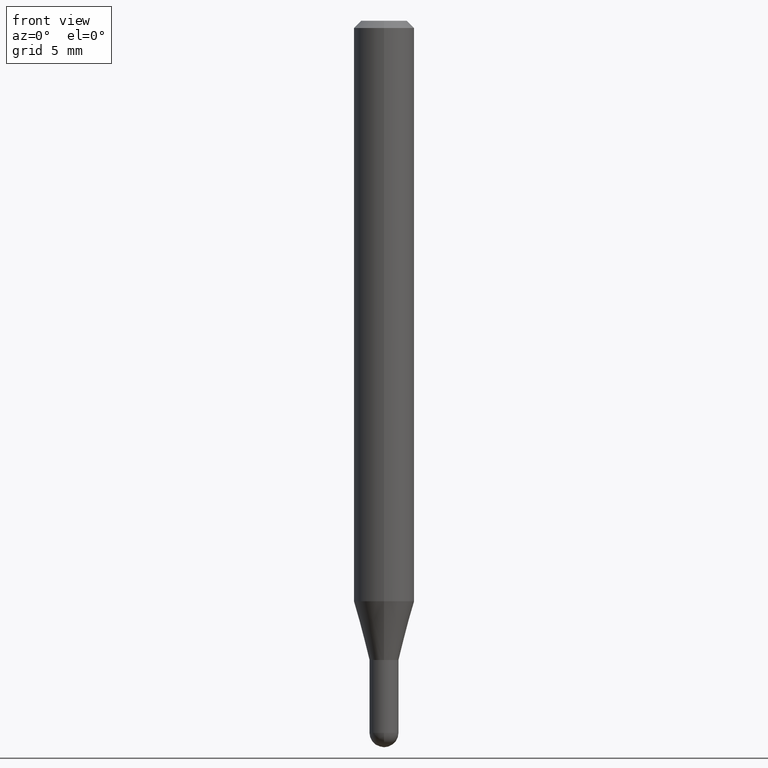
[diagram: clean part render]
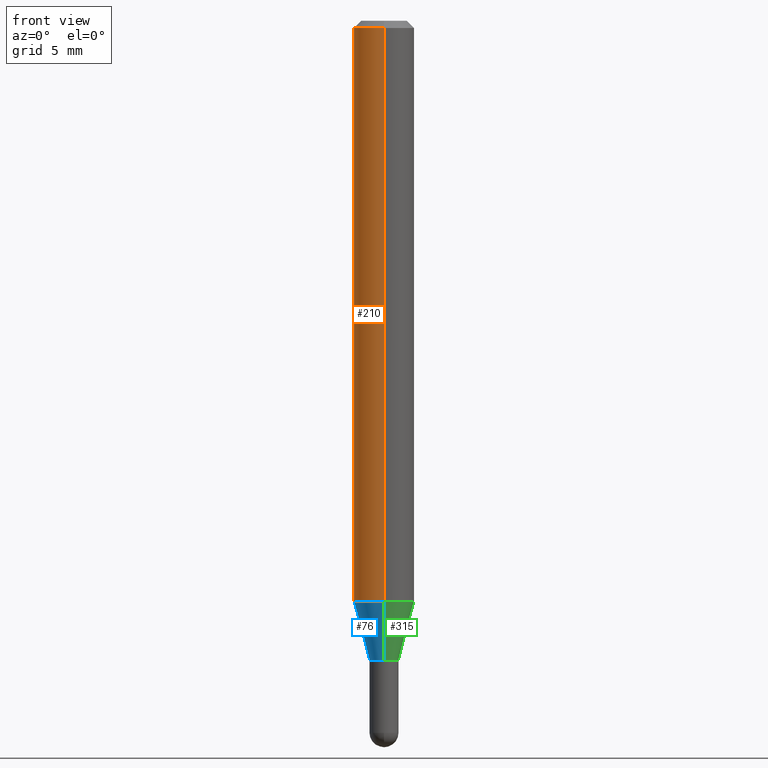
[diagram: same view with three faces highlighted in distinct colors, each labeled with its STEP entity id]
A machine part, front view with three faces highlighted in distinct colors.
Their STEP definitions:

[orange] entity #210 — the highlighted cylindrical surface (edge-blend (fillet) strip) has radius 1.5875 mm, axis along (-0, 0, 1).
#13 = EDGE_CURVE ( 'NONE', #86, #257, #282, .T. ) ;
#15 = DIRECTION ( 'NONE',  ( -2.445459950379643973E-29, 3.491494020860651909E-15, 1.000000000000000000 ) ) ;
#24 = CARTESIAN_POINT ( 'NONE',  ( 0.000000000000000000, 0.000000000000000000, 0.000000000000000000 ) ) ;
#69 = CARTESIAN_POINT ( 'NONE',  ( 3.668189925569468499E-31, -5.237241031290981167E-17, -0.01500000000000000812 ) ) ;
#73 = AXIS2_PLACEMENT_3D ( 'NONE', #101, #439, #328 ) ;
#86 = VERTEX_POINT ( 'NONE', #211 ) ;
#98 = LINE ( 'NONE', #251, #322 ) ;
#101 = CARTESIAN_POINT ( 'NONE',  ( 2.931393259063662766E-29, -4.185283032430394746E-15, -1.198708348754016662 ) ) ;
#135 = DIRECTION ( 'NONE',  ( -2.445459950379643973E-29, 3.491494020860651909E-15, 1.000000000000000000 ) ) ;
#143 = ORIENTED_EDGE ( 'NONE', *, *, #193, .F. ) ;
#147 = LINE ( 'NONE', #387, #209 ) ;
#164 = VERTEX_POINT ( 'NONE', #348 ) ;
#169 = CARTESIAN_POINT ( 'NONE',  ( -4.364351673553912750E-16, -0.06250000000000005551, -0.01499999999999979128 ) ) ;
#183 = EDGE_CURVE ( 'NONE', #364, #164, #467, .T. ) ;
#193 = EDGE_CURVE ( 'NONE', #364, #86, #98, .T. ) ;
#209 = VECTOR ( 'NONE', #459, 39.37007874015748143 ) ;
#210 = ADVANCED_FACE ( 'NONE', ( #406 ), #370, .T. ) ;
#211 = CARTESIAN_POINT ( 'NONE',  ( 4.440892098500920998E-16, 0.06249999999999995143, -0.01500000000000022669 ) ) ;
#221 = AXIS2_PLACEMENT_3D ( 'NONE', #24, #15, #435 ) ;
#222 = DIRECTION ( 'NONE',  ( -2.445459950379643973E-29, 3.491494020860651909E-15, 1.000000000000000000 ) ) ;
#238 = ORIENTED_EDGE ( 'NONE', *, *, #13, .F. ) ;
#241 = ORIENTED_EDGE ( 'NONE', *, *, #183, .T. ) ;
#251 = CARTESIAN_POINT ( 'NONE',  ( 4.440892098500625669E-16, 0.06250000000000000000, -2.182183763037907443E-16 ) ) ;
#257 = VERTEX_POINT ( 'NONE', #169 ) ;
#262 = EDGE_LOOP ( 'NONE', ( #143, #241, #373, #238 ) ) ;
#282 = CIRCLE ( 'NONE', #493, 0.06250000000000000000 ) ;
#322 = VECTOR ( 'NONE', #135, 39.37007874015748143 ) ;
#328 = DIRECTION ( 'NONE',  ( -6.982962677686265922E-15, -1.000000000000000000, 4.370956789862821150E-15 ) ) ;
#348 = CARTESIAN_POINT ( 'NONE',  ( -4.364351673553625802E-16, -0.06250000000000420497, -1.198708348754016439 ) ) ;
#364 = VERTEX_POINT ( 'NONE', #410 ) ;
#370 = CYLINDRICAL_SURFACE ( 'NONE', #221, 0.06250000000000000000 ) ;
#373 = ORIENTED_EDGE ( 'NONE', *, *, #460, .T. ) ;
#387 = CARTESIAN_POINT ( 'NONE',  ( -4.364351673553916201E-16, -0.06250000000000000000, 2.182183763037907443E-16 ) ) ;
#406 = FACE_OUTER_BOUND ( 'NONE', #262, .T. ) ;
#410 = CARTESIAN_POINT ( 'NONE',  ( 4.440892098500916068E-16, 0.06249999999999578809, -1.198708348754016884 ) ) ;
#416 = DIRECTION ( 'NONE',  ( -6.982962677686265922E-15, -1.000000000000000000, 3.483106191921935554E-15 ) ) ;
#435 = DIRECTION ( 'NONE',  ( -6.982962677686265922E-15, -1.000000000000000000, 3.491494020860651909E-15 ) ) ;
#439 = DIRECTION ( 'NONE',  ( -2.445459950379643973E-29, 3.491494020860651909E-15, 1.000000000000000000 ) ) ;
#459 = DIRECTION ( 'NONE',  ( -2.445459950379643973E-29, 3.491494020860651909E-15, 1.000000000000000000 ) ) ;
#460 = EDGE_CURVE ( 'NONE', #164, #257, #147, .T. ) ;
#467 = CIRCLE ( 'NONE', #73, 0.06250000000000000000 ) ;
#493 = AXIS2_PLACEMENT_3D ( 'NONE', #69, #222, #416 ) ;

[blue] entity #76 — the highlighted conical surface has half-angle 15 deg.
#2 = CIRCLE ( 'NONE', #208, 0.03000000000000020012 ) ;
#3 = VECTOR ( 'NONE', #347, 39.37007874015747433 ) ;
#42 = CARTESIAN_POINT ( 'NONE',  ( 3.228007134501130773E-29, -4.608772107536062145E-15, -1.320000000000000506 ) ) ;
#44 = ORIENTED_EDGE ( 'NONE', *, *, #155, .T. ) ;
#62 = CARTESIAN_POINT ( 'NONE',  ( -2.094888803305571076E-16, -0.03000000000000481101, -1.320000000000000506 ) ) ;
#63 = CARTESIAN_POINT ( 'NONE',  ( 3.228007134501130773E-29, -4.608772107536062145E-15, -1.320000000000000506 ) ) ;
#73 = AXIS2_PLACEMENT_3D ( 'NONE', #101, #439, #328 ) ;
#76 = ADVANCED_FACE ( 'NONE', ( #92 ), #303, .T. ) ;
#92 = FACE_OUTER_BOUND ( 'NONE', #280, .T. ) ;
#93 = CARTESIAN_POINT ( 'NONE',  ( 2.131628207280637224E-16, 0.02999999999999558922, -1.320000000000000506 ) ) ;
#101 = CARTESIAN_POINT ( 'NONE',  ( 2.931393259063662766E-29, -4.185283032430394746E-15, -1.198708348754016662 ) ) ;
#119 = ORIENTED_EDGE ( 'NONE', *, *, #260, .F. ) ;
#154 = CARTESIAN_POINT ( 'NONE',  ( 3.286260152890780344E-16, 0.02999999999999559616, -1.320000000000000506 ) ) ;
#155 = EDGE_CURVE ( 'NONE', #485, #390, #2, .T. ) ;
#164 = VERTEX_POINT ( 'NONE', #348 ) ;
#180 = LINE ( 'NONE', #496, #191 ) ;
#183 = EDGE_CURVE ( 'NONE', #364, #164, #467, .T. ) ;
#191 = VECTOR ( 'NONE', #337, 39.37007874015748854 ) ;
#194 = DIRECTION ( 'NONE',  ( -2.445459950379643973E-29, 3.491494020860651909E-15, 1.000000000000000000 ) ) ;
#204 = ORIENTED_EDGE ( 'NONE', *, *, #371, .T. ) ;
#208 = AXIS2_PLACEMENT_3D ( 'NONE', #42, #194, #345 ) ;
#239 = ORIENTED_EDGE ( 'NONE', *, *, #183, .F. ) ;
#243 = DIRECTION ( 'NONE',  ( -6.982962677686265922E-15, -1.000000000000000000, 0.000000000000000000 ) ) ;
#248 = DIRECTION ( 'NONE',  ( -2.445459950379643973E-29, 3.491494020860651909E-15, 1.000000000000000000 ) ) ;
#260 = EDGE_CURVE ( 'NONE', #485, #364, #323, .T. ) ;
#280 = EDGE_LOOP ( 'NONE', ( #119, #44, #204, #239 ) ) ;
#303 = CONICAL_SURFACE ( 'NONE', #383, 0.03000000000000020012, 0.2617993877991577345 ) ;
#323 = LINE ( 'NONE', #93, #3 ) ;
#328 = DIRECTION ( 'NONE',  ( -6.982962677686265922E-15, -1.000000000000000000, 4.370956789862821150E-15 ) ) ;
#337 = DIRECTION ( 'NONE',  ( -1.807323732225380626E-15, -0.2588190451025254024, 0.9659258262890669799 ) ) ;
#345 = DIRECTION ( 'NONE',  ( -6.982962677686265922E-15, -1.000000000000000000, 0.000000000000000000 ) ) ;
#347 = DIRECTION ( 'NONE',  ( 1.839019923739651986E-15, 0.2588190451025322303, 0.9659258262890653146 ) ) ;
#348 = CARTESIAN_POINT ( 'NONE',  ( -4.364351673553625802E-16, -0.06250000000000420497, -1.198708348754016439 ) ) ;
#364 = VERTEX_POINT ( 'NONE', #410 ) ;
#371 = EDGE_CURVE ( 'NONE', #390, #164, #180, .T. ) ;
#383 = AXIS2_PLACEMENT_3D ( 'NONE', #63, #248, #243 ) ;
#390 = VERTEX_POINT ( 'NONE', #62 ) ;
#410 = CARTESIAN_POINT ( 'NONE',  ( 4.440892098500916068E-16, 0.06249999999999578809, -1.198708348754016884 ) ) ;
#439 = DIRECTION ( 'NONE',  ( -2.445459950379643973E-29, 3.491494020860651909E-15, 1.000000000000000000 ) ) ;
#467 = CIRCLE ( 'NONE', #73, 0.06250000000000000000 ) ;
#485 = VERTEX_POINT ( 'NONE', #154 ) ;
#496 = CARTESIAN_POINT ( 'NONE',  ( -2.094888803305571076E-16, -0.03000000000000481101, -1.320000000000000506 ) ) ;

[green] entity #315 — the highlighted conical surface has half-angle 15 deg.
#3 = VECTOR ( 'NONE', #347, 39.37007874015747433 ) ;
#18 = DIRECTION ( 'NONE',  ( -2.445459950379643973E-29, 3.491494020860651909E-15, 1.000000000000000000 ) ) ;
#26 = ORIENTED_EDGE ( 'NONE', *, *, #90, .F. ) ;
#27 = DIRECTION ( 'NONE',  ( -6.982962677686265922E-15, -1.000000000000000000, 0.000000000000000000 ) ) ;
#40 = AXIS2_PLACEMENT_3D ( 'NONE', #173, #408, #508 ) ;
#62 = CARTESIAN_POINT ( 'NONE',  ( -2.094888803305571076E-16, -0.03000000000000481101, -1.320000000000000506 ) ) ;
#87 = CIRCLE ( 'NONE', #299, 0.03000000000000020012 ) ;
#89 = AXIS2_PLACEMENT_3D ( 'NONE', #407, #18, #27 ) ;
#90 = EDGE_CURVE ( 'NONE', #164, #364, #427, .T. ) ;
#93 = CARTESIAN_POINT ( 'NONE',  ( 2.131628207280637224E-16, 0.02999999999999558922, -1.320000000000000506 ) ) ;
#115 = DIRECTION ( 'NONE',  ( -2.445459950379643973E-29, 3.491494020860651909E-15, 1.000000000000000000 ) ) ;
#138 = EDGE_CURVE ( 'NONE', #390, #485, #87, .T. ) ;
#153 = CARTESIAN_POINT ( 'NONE',  ( 3.228007134501130773E-29, -4.608772107536062145E-15, -1.320000000000000506 ) ) ;
#154 = CARTESIAN_POINT ( 'NONE',  ( 3.286260152890780344E-16, 0.02999999999999559616, -1.320000000000000506 ) ) ;
#164 = VERTEX_POINT ( 'NONE', #348 ) ;
#173 = CARTESIAN_POINT ( 'NONE',  ( 2.931393259063662766E-29, -4.185283032430394746E-15, -1.198708348754016662 ) ) ;
#180 = LINE ( 'NONE', #496, #191 ) ;
#191 = VECTOR ( 'NONE', #337, 39.37007874015748854 ) ;
#199 = EDGE_LOOP ( 'NONE', ( #288, #398, #26, #329 ) ) ;
#260 = EDGE_CURVE ( 'NONE', #485, #364, #323, .T. ) ;
#277 = DIRECTION ( 'NONE',  ( -6.982962677686265922E-15, -1.000000000000000000, 0.000000000000000000 ) ) ;
#288 = ORIENTED_EDGE ( 'NONE', *, *, #138, .T. ) ;
#298 = FACE_OUTER_BOUND ( 'NONE', #199, .T. ) ;
#299 = AXIS2_PLACEMENT_3D ( 'NONE', #153, #115, #277 ) ;
#304 = CONICAL_SURFACE ( 'NONE', #89, 0.03000000000000020012, 0.2617993877991577345 ) ;
#315 = ADVANCED_FACE ( 'NONE', ( #298 ), #304, .T. ) ;
#323 = LINE ( 'NONE', #93, #3 ) ;
#329 = ORIENTED_EDGE ( 'NONE', *, *, #371, .F. ) ;
#337 = DIRECTION ( 'NONE',  ( -1.807323732225380626E-15, -0.2588190451025254024, 0.9659258262890669799 ) ) ;
#347 = DIRECTION ( 'NONE',  ( 1.839019923739651986E-15, 0.2588190451025322303, 0.9659258262890653146 ) ) ;
#348 = CARTESIAN_POINT ( 'NONE',  ( -4.364351673553625802E-16, -0.06250000000000420497, -1.198708348754016439 ) ) ;
#364 = VERTEX_POINT ( 'NONE', #410 ) ;
#371 = EDGE_CURVE ( 'NONE', #390, #164, #180, .T. ) ;
#390 = VERTEX_POINT ( 'NONE', #62 ) ;
#398 = ORIENTED_EDGE ( 'NONE', *, *, #260, .T. ) ;
#407 = CARTESIAN_POINT ( 'NONE',  ( 3.228007134501130773E-29, -4.608772107536062145E-15, -1.320000000000000506 ) ) ;
#408 = DIRECTION ( 'NONE',  ( -2.445459950379643973E-29, 3.491494020860651909E-15, 1.000000000000000000 ) ) ;
#410 = CARTESIAN_POINT ( 'NONE',  ( 4.440892098500916068E-16, 0.06249999999999578809, -1.198708348754016884 ) ) ;
#427 = CIRCLE ( 'NONE', #40, 0.06250000000000000000 ) ;
#485 = VERTEX_POINT ( 'NONE', #154 ) ;
#496 = CARTESIAN_POINT ( 'NONE',  ( -2.094888803305571076E-16, -0.03000000000000481101, -1.320000000000000506 ) ) ;
#508 = DIRECTION ( 'NONE',  ( -6.982962677686265922E-15, -1.000000000000000000, 4.370956789862821150E-15 ) ) ;